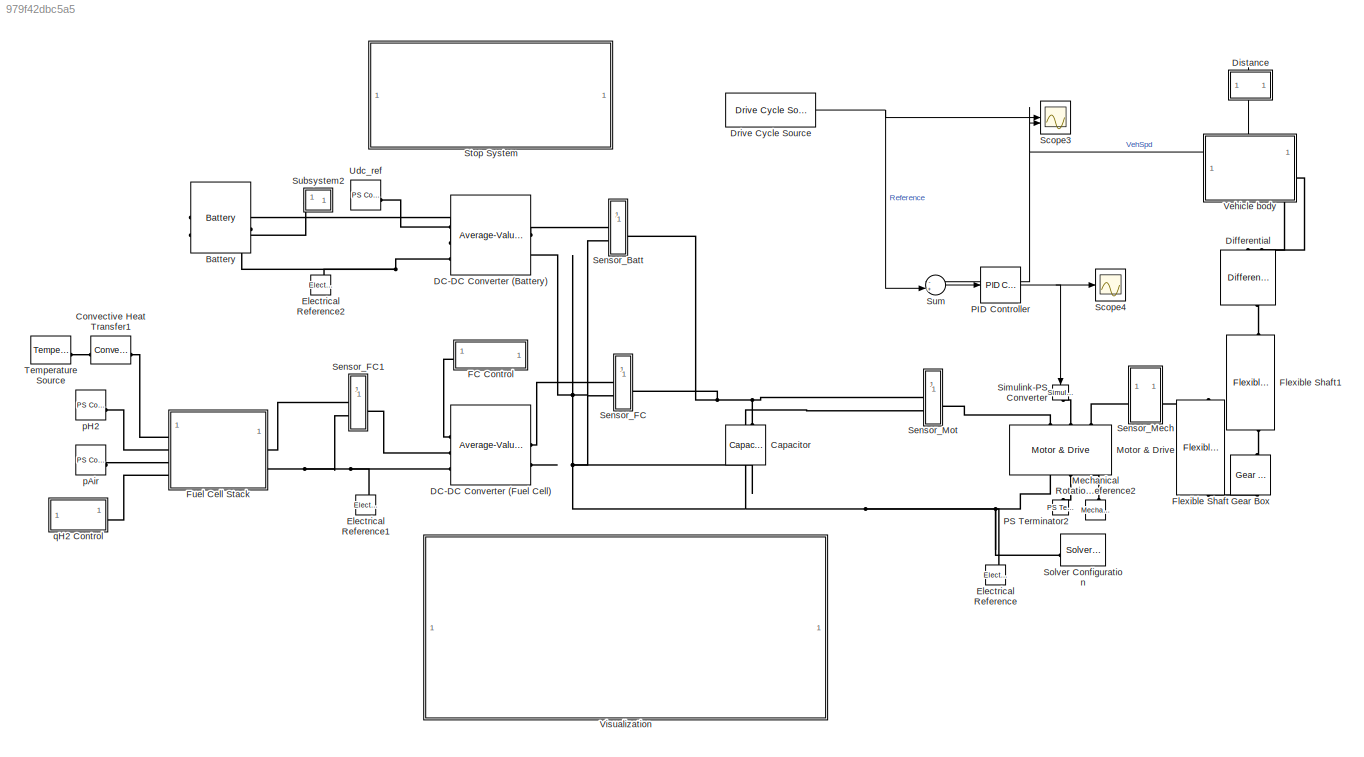
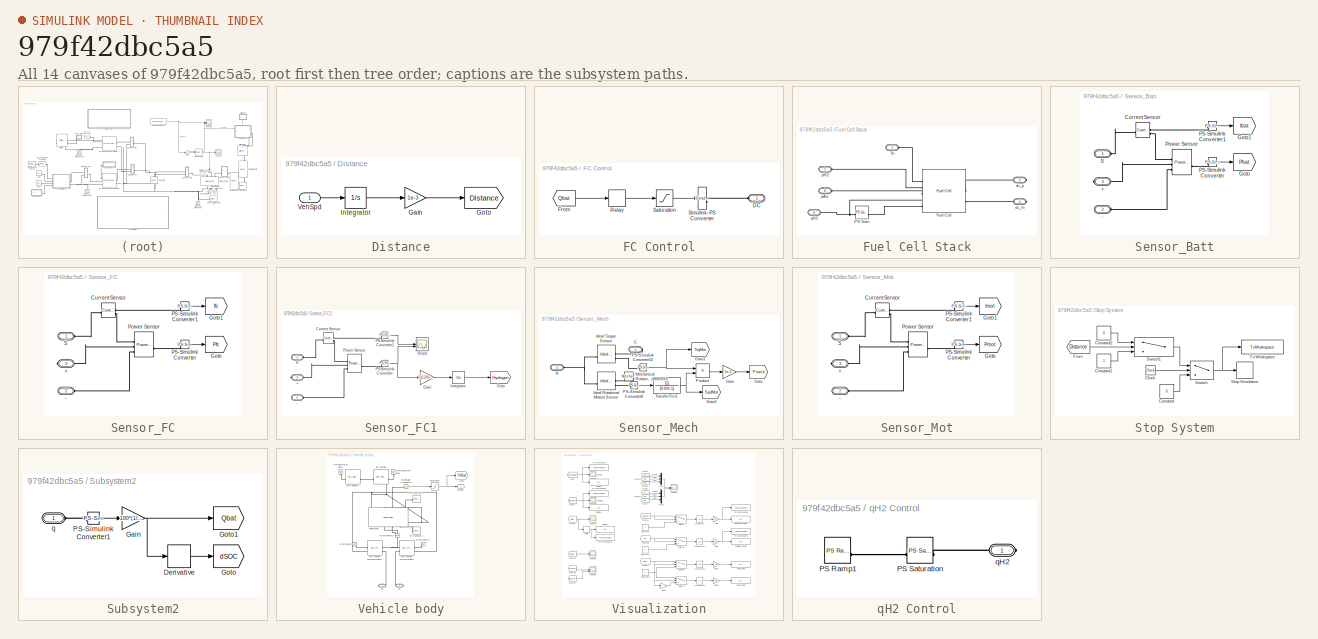
[diagram: thumbnail index - all 14 canvases of the model, root first then tree order]
MODEL slx_979f42dbc5a5
KIND model
CONFIG AbsTol = 1e-9
CONFIG EnableMultiTasking = off
CONFIG FixedStep = auto
CONFIG MaxStep = auto
CONFIG MinStep = 1e-2
CONFIG RelTol = 1e-3
CONFIG SampleTimeConstraint = Unconstrained
CONFIG SolverName = VariableStepAuto
CONFIG StartTime = 0
CONFIG StopTime = 6012
WORKSPACE source: mxarray member
WORKSPACE Cap = 4
WORKSPACE Grade = 0
WORKSPACE QHbatt = 70
WORKSPACE QLbatt = 40
WORKSPACE Trqmax = 400
WORKSPACE Vref = 650
BLOCK [Reference] Battery  REF=batteryecm_lib/Battery
  NameLocation = top
  SourceBlock = batteryecm_lib/Battery
  SourceType = Battery
BLOCK [Reference] Capacitor  REF=fl_lib/Electrical/Electrical Elements/Capacitor
  NameLocation = left
  SourceBlock = fl_lib/Electrical/Electrical Elements/Capacitor
  SourceType = Capacitor
BLOCK [Reference] Convective Heat Transfer1  REF=fl_lib/Thermal/Thermal Elements/Convective Heat
Transfer
  SourceBlock = fl_lib/Thermal/Thermal Elements/Convective Heat\nTransfer
  SourceType = Convective Heat\nTransfer
BLOCK [Reference] DC-DC Converter (Battery)  REF=ee_lib/Semiconductors &
Converters/Converters/Average-Value DC-DC
Converter
  SourceBlock = ee_lib/Semiconductors &\nConverters/Converters/Average-Value DC-DC\nConverter
  SourceType = Average-Value DC-DC\nConverter
BLOCK [Reference] DC-DC Converter (Fuel Cell)  REF=ee_lib/Semiconductors &
Converters/Converters/Average-Value DC-DC
Converter
  SourceBlock = ee_lib/Semiconductors &\nConverters/Converters/Average-Value DC-DC\nConverter
  SourceType = Average-Value DC-DC\nConverter
BLOCK [Reference] Differential  REF=sdl_lib/Gears/Differential
  NameLocation = left
  SourceBlock = sdl_lib/Gears/Differential
  SourceType = Differential
BLOCK [SubSystem] Distance
  ShowPortLabels = none
BLOCK [Gain] Distance/Gain
  Gain = 1e-3
BLOCK [Goto] Distance/Goto
  GotoTag = Distance
  TagVisibility = global
BLOCK [Integrator] Distance/Integrator
BLOCK [Inport] Distance/VehSpd
BLOCK [Reference] Drive Cycle Source  REF=autolibshared/Drive Cycle Source
  AttributesFormatString = %<cycleVar> (%<tfinal>)
  LibrarySourceBlock = autolibscenario/Drive Cycle Source
  SourceBlock = autolibshared/Drive Cycle Source
  SourceType = Drive Cycle Source
BLOCK [Reference] Electrical Reference  REF=fl_lib/Electrical/Electrical Elements/Electrical Reference
  NameLocation = right
  SourceBlock = fl_lib/Electrical/Electrical Elements/Electrical Reference
  SourceType = Electrical Reference
BLOCK [Reference] Electrical Reference1  REF=fl_lib/Electrical/Electrical Elements/Electrical Reference
  LibrarySourceBlock = ee_lib/Connectors &\nReferences/Electrical Reference
  NameLocation = right
  SourceBlock = fl_lib/Electrical/Electrical Elements/Electrical Reference
  SourceType = Electrical Reference
BLOCK [Reference] Electrical Reference2  REF=fl_lib/Electrical/Electrical Elements/Electrical Reference
  NameLocation = right
  SourceBlock = fl_lib/Electrical/Electrical Elements/Electrical Reference
  SourceType = Electrical Reference
BLOCK [SubSystem] FC Control
  ShowPortLabels = none
BLOCK [PMIOPort] FC Control/DC
  Side = Left
BLOCK [From] FC Control/From
  GotoTag = Qbat
  TagVisibility = global
BLOCK [Relay] FC Control/Relay
  OffSwitchValue = QLbatt
  OnSwitchValue = QHbatt
BLOCK [Saturate] FC Control/Saturation
  LowerLimit = 0.05
  UpperLimit = 0.99
BLOCK [Reference] FC Control/Simulink-PS Converter  REF=nesl_utility/Simulink-PS
Converter
  SourceBlock = nesl_utility/Simulink-PS\nConverter
  SourceType = Simulink-PS\nConverter
BLOCK [Reference] Flexible Shaft  REF=sdl_lib/Couplings & Drives/Flexible Shaft
  NameLocation = left
  SourceBlock = sdl_lib/Couplings & Drives/Flexible Shaft
  SourceType = Flexible Shaft
BLOCK [Reference] Flexible Shaft1  REF=sdl_lib/Couplings & Drives/Flexible Shaft
  NameLocation = right
  SourceBlock = sdl_lib/Couplings & Drives/Flexible Shaft
  SourceType = Flexible Shaft
BLOCK [SubSystem] Fuel Cell Stack
BLOCK [Reference] Fuel Cell Stack/Fuel Cell  REF=ee_lib/Sources/Fuel Cell
  SourceBlock = ee_lib/Sources/Fuel Cell
  SourceType = Fuel Cell
BLOCK [Reference] Fuel Cell Stack/PS Gain  REF=fl_lib/Physical Signals/Functions/PS Gain
  SourceBlock = fl_lib/Physical Signals/Functions/PS Gain
  SourceType = PS Gain
BLOCK [PMIOPort] Fuel Cell Stack/Th
  Side = Left
BLOCK [PMIOPort] Fuel Cell Stack/dc_m
  Port = 5
  Side = Right
BLOCK [PMIOPort] Fuel Cell Stack/dc_p
  Port = 2
  Side = Right
BLOCK [PMIOPort] Fuel Cell Stack/pAir
  Port = 4
  Side = Left
BLOCK [PMIOPort] Fuel Cell Stack/pH2
  Port = 3
  Side = Left
BLOCK [PMIOPort] Fuel Cell Stack/qH2
  Port = 6
  Side = Left
BLOCK [Reference] Gear Box  REF=fl_lib/Mechanical/Mechanisms/Gear Box
  NameLocation = right
  SourceBlock = fl_lib/Mechanical/Mechanisms/Gear Box
  SourceType = Gear Box
BLOCK [Reference] Mechanical Rotational Reference2  REF=fl_lib/Mechanical/Rotational Elements/Mechanical
Rotational Reference
  NameLocation = right
  SourceBlock = fl_lib/Mechanical/Rotational Elements/Mechanical\nRotational Reference
  SourceType = Mechanical\nRotational Reference
BLOCK [Reference] Motor & Drive  REF=sdl_lib/Engines & Motors/Motor & Drive
  NameLocation = right
  SourceBlock = sdl_lib/Engines & Motors/Motor & Drive
  SourceType = Motor & Drive
BLOCK [Reference] PID Controller  REF=slpidlib/PID Controller
  LibrarySourceBlock = simulink/Continuous/PID Controller
  SourceBlock = slpidlib/PID Controller
  SourceType = PID 1dof
BLOCK [Reference] PS Terminator2  REF=fl_lib/Physical Signals/Sinks/PS Terminator
  NameLocation = left
  SourceBlock = fl_lib/Physical Signals/Sinks/PS Terminator
  SourceType = PS Terminator
BLOCK [Scope] Scope3
  Floating = off
  NumInputPorts = 2
  ScopeSpecificationString = Simulink.scopes.TimeScopeBlockCfg('CurrentConfiguration', extmgr.ConfigurationSet(extmgr.Configuration('Core','General UI',true,'FigureColor',[1 1 1]),extmgr.Configuration('Core','Source UI',true),extmgr.Configuration('Sources','WiredSimulink',true,'DataLoggingVariableName','ScopeData5'),extmgr.Configuration('Visuals','Time Domain',true,'SerializedDisplays',{struct('MinYLimReal','-5.22222','MaxYLi...<+1712ch>
BLOCK [Scope] Scope4
  Floating = off
  NumInputPorts = 1
  ScopeSpecificationString = Simulink.scopes.TimeScopeBlockCfg('CurrentConfiguration', extmgr.ConfigurationSet(extmgr.Configuration('Core','General UI',true,'FigureColor',[1 1 1]),extmgr.Configuration('Core','Source UI',true),extmgr.Configuration('Sources','WiredSimulink',true,'DataLoggingVariableName','ScopeData2'),extmgr.Configuration('Visuals','Time Domain',true,'SerializedDisplays',{struct('MinYLimReal','-110.23767','MaxY...<+1659ch>
BLOCK [SubSystem] Sensor_Batt
BLOCK [PMIOPort] Sensor_Batt/+
  Port = 3
  Side = Right
BLOCK [PMIOPort] Sensor_Batt/-
  Port = 2
  Side = Left
BLOCK [Reference] Sensor_Batt/Current Sensor  REF=fl_lib/Electrical/Electrical Sensors/Current Sensor
  SourceBlock = fl_lib/Electrical/Electrical Sensors/Current Sensor
  SourceType = Current Sensor
BLOCK [Goto] Sensor_Batt/Goto
  GotoTag = Pbat
  TagVisibility = global
BLOCK [Goto] Sensor_Batt/Goto1
  GotoTag = Ibat
  TagVisibility = global
BLOCK [Reference] Sensor_Batt/PS-Simulink Converter  REF=nesl_utility/PS-Simulink
Converter
  SourceBlock = nesl_utility/PS-Simulink\nConverter
  SourceType = PS-Simulink\nConverter
BLOCK [Reference] Sensor_Batt/PS-Simulink Converter1  REF=nesl_utility/PS-Simulink
Converter
  SourceBlock = nesl_utility/PS-Simulink\nConverter
  SourceType = PS-Simulink\nConverter
BLOCK [Reference] Sensor_Batt/Power Sensor  REF=ee_lib/Sensors &
Transducers/Power Sensor
  SourceBlock = ee_lib/Sensors &\nTransducers/Power Sensor
  SourceType = Power Sensor
BLOCK [PMIOPort] Sensor_Batt/S
  Side = Left
BLOCK [SubSystem] Sensor_FC
BLOCK [PMIOPort] Sensor_FC/+
  Port = 3
  Side = Right
BLOCK [PMIOPort] Sensor_FC/-
  Port = 2
  Side = Left
BLOCK [Reference] Sensor_FC/Current Sensor  REF=fl_lib/Electrical/Electrical Sensors/Current Sensor
  SourceBlock = fl_lib/Electrical/Electrical Sensors/Current Sensor
  SourceType = Current Sensor
BLOCK [Goto] Sensor_FC/Goto
  GotoTag = Pfc
  TagVisibility = global
BLOCK [Goto] Sensor_FC/Goto1
  GotoTag = Ifc
  TagVisibility = global
BLOCK [Reference] Sensor_FC/PS-Simulink Converter  REF=nesl_utility/PS-Simulink
Converter
  SourceBlock = nesl_utility/PS-Simulink\nConverter
  SourceType = PS-Simulink\nConverter
BLOCK [Reference] Sensor_FC/PS-Simulink Converter1  REF=nesl_utility/PS-Simulink
Converter
  SourceBlock = nesl_utility/PS-Simulink\nConverter
  SourceType = PS-Simulink\nConverter
BLOCK [Reference] Sensor_FC/Power Sensor  REF=ee_lib/Sensors &
Transducers/Power Sensor
  SourceBlock = ee_lib/Sensors &\nTransducers/Power Sensor
  SourceType = Power Sensor
BLOCK [PMIOPort] Sensor_FC/S
  Side = Left
BLOCK [SubSystem] Sensor_FC1
BLOCK [PMIOPort] Sensor_FC1/+
  Port = 3
  Side = Right
BLOCK [PMIOPort] Sensor_FC1/-
  Port = 2
  Side = Left
BLOCK [Reference] Sensor_FC1/Current Sensor  REF=fl_lib/Electrical/Electrical Sensors/Current Sensor
  SourceBlock = fl_lib/Electrical/Electrical Sensors/Current Sensor
  SourceType = Current Sensor
BLOCK [Gain] Sensor_FC1/Gain
  Gain = 1/(120e3*0.45)
BLOCK [Goto] Sensor_FC1/Goto
  GotoTag = Hydrogen
  TagVisibility = global
BLOCK [Integrator] Sensor_FC1/Integrator
BLOCK [Reference] Sensor_FC1/PS-Simulink Converter  REF=nesl_utility/PS-Simulink
Converter
  SourceBlock = nesl_utility/PS-Simulink\nConverter
  SourceType = PS-Simulink\nConverter
BLOCK [Reference] Sensor_FC1/PS-Simulink Converter1  REF=nesl_utility/PS-Simulink
Converter
  SourceBlock = nesl_utility/PS-Simulink\nConverter
  SourceType = PS-Simulink\nConverter
BLOCK [Reference] Sensor_FC1/Power Sensor  REF=ee_lib/Sensors &
Transducers/Power Sensor
  SourceBlock = ee_lib/Sensors &\nTransducers/Power Sensor
  SourceType = Power Sensor
BLOCK [PMIOPort] Sensor_FC1/S
  Side = Left
BLOCK [Scope] Sensor_FC1/Scope
  Floating = off
  NumInputPorts = 2
  ScopeSpecificationString = Simulink.scopes.TimeScopeBlockCfg('CurrentConfiguration', extmgr.ConfigurationSet(extmgr.Configuration('Core','General UI',true),extmgr.Configuration('Core','Source UI',true),extmgr.Configuration('Sources','WiredSimulink',true,'DataLoggingVariableName','ScopeData2'),extmgr.Configuration('Visuals','Time Domain',true,'SerializedDisplays',{struct('MinYLimReal','-7.0905','MaxYLimReal','65.05216','YLab...<+1465ch>
BLOCK [SubSystem] Sensor_Mech
BLOCK [PMIOPort] Sensor_Mech/C
  Side = Right
BLOCK [Gain] Sensor_Mech/Gain
  Gain = 1e-3
BLOCK [Goto] Sensor_Mech/Goto
  GotoTag = Pmech
  TagVisibility = global
BLOCK [Goto] Sensor_Mech/Goto1
  GotoTag = TrqMot
  TagVisibility = global
BLOCK [Goto] Sensor_Mech/Goto2
  GotoTag = SpdMot
  TagVisibility = global
BLOCK [Reference] Sensor_Mech/Ideal Rotational Motion Sensor  REF=fl_lib/Mechanical/Mechanical Sensors/Ideal Rotational
Motion Sensor
  SourceBlock = fl_lib/Mechanical/Mechanical Sensors/Ideal Rotational\nMotion Sensor
  SourceType = Ideal Rotational\nMotion Sensor
BLOCK [Reference] Sensor_Mech/Ideal Torque Sensor  REF=fl_lib/Mechanical/Mechanical Sensors/Ideal Torque Sensor
  NameLocation = top
  SourceBlock = fl_lib/Mechanical/Mechanical Sensors/Ideal Torque Sensor
  SourceType = Ideal Torque Sensor
BLOCK [Reference] Sensor_Mech/Mechanical Rotational Reference3  REF=fl_lib/Mechanical/Rotational Elements/Mechanical
Rotational Reference
  NameLocation = top
  SourceBlock = fl_lib/Mechanical/Rotational Elements/Mechanical\nRotational Reference
  SourceType = Mechanical\nRotational Reference
BLOCK [Reference] Sensor_Mech/PS-Simulink Converter10  REF=nesl_utility/PS-Simulink
Converter
  SourceBlock = nesl_utility/PS-Simulink\nConverter
  SourceType = PS-Simulink\nConverter
BLOCK [Reference] Sensor_Mech/PS-Simulink Converter8  REF=nesl_utility/PS-Simulink
Converter
  SourceBlock = nesl_utility/PS-Simulink\nConverter
  SourceType = PS-Simulink\nConverter
BLOCK [Product] Sensor_Mech/Product
BLOCK [PMIOPort] Sensor_Mech/R
  Port = 2
  Side = Left
BLOCK [TransferFcn] Sensor_Mech/Transfer Fcn1
  Denominator = [0.001 1]
BLOCK [SubSystem] Sensor_Mot
BLOCK [PMIOPort] Sensor_Mot/+
  Port = 3
  Side = Right
BLOCK [PMIOPort] Sensor_Mot/-
  Port = 2
  Side = Left
BLOCK [Reference] Sensor_Mot/Current Sensor  REF=fl_lib/Electrical/Electrical Sensors/Current Sensor
  SourceBlock = fl_lib/Electrical/Electrical Sensors/Current Sensor
  SourceType = Current Sensor
BLOCK [Goto] Sensor_Mot/Goto
  GotoTag = Pmot
  TagVisibility = global
BLOCK [Goto] Sensor_Mot/Goto1
  GotoTag = Imot
  TagVisibility = global
BLOCK [Reference] Sensor_Mot/PS-Simulink Converter  REF=nesl_utility/PS-Simulink
Converter
  SourceBlock = nesl_utility/PS-Simulink\nConverter
  SourceType = PS-Simulink\nConverter
BLOCK [Reference] Sensor_Mot/PS-Simulink Converter1  REF=nesl_utility/PS-Simulink
Converter
  SourceBlock = nesl_utility/PS-Simulink\nConverter
  SourceType = PS-Simulink\nConverter
BLOCK [Reference] Sensor_Mot/Power Sensor  REF=ee_lib/Sensors &
Transducers/Power Sensor
  SourceBlock = ee_lib/Sensors &\nTransducers/Power Sensor
  SourceType = Power Sensor
BLOCK [PMIOPort] Sensor_Mot/S
  Side = Left
BLOCK [Reference] Simulink-PS Converter  REF=nesl_utility/Simulink-PS
Converter
  NameLocation = left
  SourceBlock = nesl_utility/Simulink-PS\nConverter
  SourceType = Simulink-PS\nConverter
BLOCK [Reference] Solver Configuration  REF=nesl_utility/Solver
Configuration
  SourceBlock = nesl_utility/Solver\nConfiguration
  SourceType = Solver\nConfiguration
BLOCK [SubSystem] Stop System
BLOCK [Clock] Stop System/Clock
BLOCK [Constant] Stop System/Constant
  Value = 0
BLOCK [Constant] Stop System/Constant1
BLOCK [Constant] Stop System/Constant2
  Value = 0
BLOCK [From] Stop System/From
  GotoTag = Distance
  TagVisibility = global
BLOCK [Stop] Stop System/Stop Simulation
BLOCK [Switch] Stop System/Switch
  Criteria = u2 > Threshold
  InputSameDT = off
  SaturateOnIntegerOverflow = off
  Threshold = 50
BLOCK [Switch] Stop System/Switch1
  Criteria = u2 > Threshold
  InputSameDT = off
  SaturateOnIntegerOverflow = off
  Threshold = 1e-4
BLOCK [ToWorkspace] Stop System/To Workspace
  FixptAsFi = on
  MaxDataPoints = 1
  SampleTime = -1
  Save2DSignal = 2-D array (concatenate along first dimension)
  VariableName = Fstop
BLOCK [SubSystem] Subsystem2
  NameLocation = top
BLOCK [Derivative] Subsystem2/Derivative
BLOCK [Gain] Subsystem2/Gain
  Gain = 100*(1/Qbatt)
BLOCK [Goto] Subsystem2/Goto
  GotoTag = dSOC
  TagVisibility = global
BLOCK [Goto] Subsystem2/Goto1
  GotoTag = Qbat
  TagVisibility = global
BLOCK [Reference] Subsystem2/PS-Simulink Converter1  REF=nesl_utility/PS-Simulink
Converter
  SourceBlock = nesl_utility/PS-Simulink\nConverter
  SourceType = PS-Simulink\nConverter
BLOCK [PMIOPort] Subsystem2/q
  Side = Left
BLOCK [Sum] Sum
  Inputs = -+|
BLOCK [Reference] Temperature Source  REF=fl_lib/Thermal/Thermal Sources/Temperature Source
  SourceBlock = fl_lib/Thermal/Thermal Sources/Temperature Source
  SourceType = Temperature Source
BLOCK [Reference] Udc_ref  REF=fl_lib/Physical Signals/Sources/PS Constant
  SourceBlock = fl_lib/Physical Signals/Sources/PS Constant
  SourceType = PS Constant
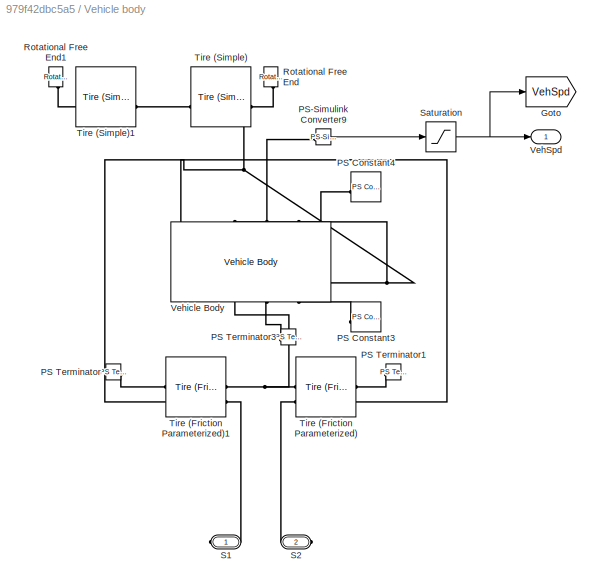
BLOCK [SubSystem] Vehicle body
  NameLocation = top
  PortSchema = {"entries":[{"content":{"sides":[{"content":{"connectorIds":["Out1"]},"type":"ConnectorPlacement.EquallySpacedRectSide","uuid":"30e3ac76-7117-44d4-973a-6378fff16b47"},{"content":{"side":"RIGHT"},"type":"ConnectorPlacement.EquallySpacedRectSide","uuid":"107753d6-a5ca-4ee3-aa53-d48c458c6d9d"},{"content":{"side":"TOP"},"type":"ConnectorPlacement.EquallySpacedRectSide","uuid":"0a3e3c11-8cff-4941-9bcb-...<+360ch>
  ShowPortLabels = none
BLOCK [Goto] Vehicle body/Goto
  GotoTag = VehSpd
  TagVisibility = global
BLOCK [Reference] Vehicle body/PS Constant3  REF=fl_lib/Physical Signals/Sources/PS Constant
  SourceBlock = fl_lib/Physical Signals/Sources/PS Constant
  SourceType = PS Constant
BLOCK [Reference] Vehicle body/PS Constant4  REF=fl_lib/Physical Signals/Sources/PS Constant
  SourceBlock = fl_lib/Physical Signals/Sources/PS Constant
  SourceType = PS Constant
BLOCK [Reference] Vehicle body/PS Terminator  REF=fl_lib/Physical Signals/Sinks/PS Terminator
  SourceBlock = fl_lib/Physical Signals/Sinks/PS Terminator
  SourceType = PS Terminator
BLOCK [Reference] Vehicle body/PS Terminator1  REF=fl_lib/Physical Signals/Sinks/PS Terminator
  SourceBlock = fl_lib/Physical Signals/Sinks/PS Terminator
  SourceType = PS Terminator
BLOCK [Reference] Vehicle body/PS Terminator3  REF=fl_lib/Physical Signals/Sinks/PS Terminator
  SourceBlock = fl_lib/Physical Signals/Sinks/PS Terminator
  SourceType = PS Terminator
BLOCK [Reference] Vehicle body/PS-Simulink Converter9  REF=nesl_utility/PS-Simulink
Converter
  SourceBlock = nesl_utility/PS-Simulink\nConverter
  SourceType = PS-Simulink\nConverter
BLOCK [Reference] Vehicle body/Rotational Free End  REF=fl_lib/Mechanical/Rotational Elements/Rotational Free End
  NameLocation = left
  SourceBlock = fl_lib/Mechanical/Rotational Elements/Rotational Free End
  SourceType = Rotational Free End
BLOCK [Reference] Vehicle body/Rotational Free End1  REF=fl_lib/Mechanical/Rotational Elements/Rotational Free End
  NameLocation = left
  SourceBlock = fl_lib/Mechanical/Rotational Elements/Rotational Free End
  SourceType = Rotational Free End
BLOCK [PMIOPort] Vehicle body/S1
  Side = Right
BLOCK [PMIOPort] Vehicle body/S2
  Port = 2
  Side = Right
BLOCK [Saturate] Vehicle body/Saturation
  LowerLimit = 0
  UpperLimit = inf
  ZeroCross = off
BLOCK [Reference] Vehicle body/Tire (Friction Parameterized)  REF=sdl_lib/Tires & Vehicles/Tire (Friction
Parameterized)
  SourceBlock = sdl_lib/Tires & Vehicles/Tire (Friction\nParameterized)
  SourceType = Tire (Friction\nParameterized)
BLOCK [Reference] Vehicle body/Tire (Friction Parameterized)1  REF=sdl_lib/Tires & Vehicles/Tire (Friction
Parameterized)
  SourceBlock = sdl_lib/Tires & Vehicles/Tire (Friction\nParameterized)
  SourceType = Tire (Friction\nParameterized)
BLOCK [Reference] Vehicle body/Tire (Simple)  REF=sdl_lib/Tires & Vehicles/Tire (Simple)
  NameLocation = top
  SourceBlock = sdl_lib/Tires & Vehicles/Tire (Simple)
  SourceType = Tire (Simple)
BLOCK [Reference] Vehicle body/Tire (Simple)1  REF=sdl_lib/Tires & Vehicles/Tire (Simple)
  NameLocation = top
  SourceBlock = sdl_lib/Tires & Vehicles/Tire (Simple)
  SourceType = Tire (Simple)
BLOCK [Outport] Vehicle body/VehSpd
BLOCK [Reference] Vehicle body/Vehicle Body  REF=sdl_lib/Tires & Vehicles/Vehicle Body
  NameLocation = right
  SourceBlock = sdl_lib/Tires & Vehicles/Vehicle Body
  SourceType = Vehicle Body
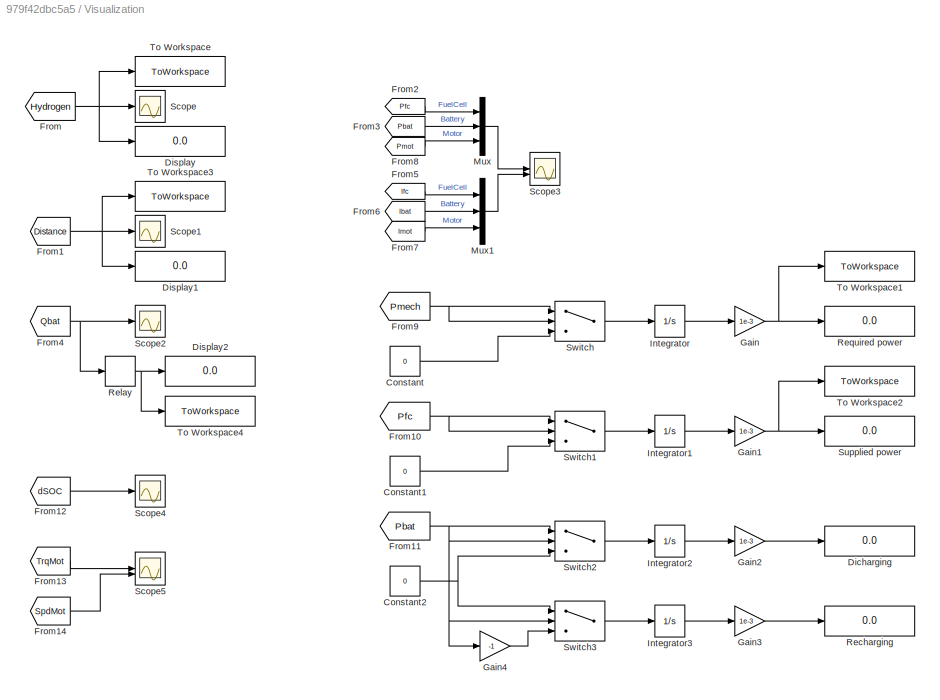
BLOCK [SubSystem] Visualization
BLOCK [Constant] Visualization/Constant
  Value = 0
BLOCK [Constant] Visualization/Constant1
  Value = 0
BLOCK [Constant] Visualization/Constant2
  Value = 0
BLOCK [Display] Visualization/Dicharging
  Decimation = 1
BLOCK [Display] Visualization/Display
  Decimation = 1
BLOCK [Display] Visualization/Display1
  Decimation = 1
BLOCK [Display] Visualization/Display2
  Decimation = 1
BLOCK [From] Visualization/From
  GotoTag = Hydrogen
  TagVisibility = global
BLOCK [From] Visualization/From1
  GotoTag = Distance
  TagVisibility = global
BLOCK [From] Visualization/From10
  GotoTag = Pfc
  TagVisibility = global
BLOCK [From] Visualization/From11
  GotoTag = Pbat
  TagVisibility = global
BLOCK [From] Visualization/From12
  GotoTag = dSOC
  TagVisibility = global
BLOCK [From] Visualization/From13
  GotoTag = TrqMot
  TagVisibility = global
BLOCK [From] Visualization/From14
  GotoTag = SpdMot
  TagVisibility = global
BLOCK [From] Visualization/From2
  GotoTag = Pfc
  TagVisibility = global
BLOCK [From] Visualization/From3
  GotoTag = Pbat
  TagVisibility = global
BLOCK [From] Visualization/From4
  GotoTag = Qbat
  TagVisibility = global
BLOCK [From] Visualization/From5
  GotoTag = Ifc
  TagVisibility = global
BLOCK [From] Visualization/From6
  GotoTag = Ibat
  TagVisibility = global
BLOCK [From] Visualization/From7
  GotoTag = Imot
  TagVisibility = global
BLOCK [From] Visualization/From8
  GotoTag = Pmot
  TagVisibility = global
BLOCK [From] Visualization/From9
  GotoTag = Pmech
  TagVisibility = global
BLOCK [Gain] Visualization/Gain
  Gain = 1e-3
BLOCK [Gain] Visualization/Gain1
  Gain = 1e-3
BLOCK [Gain] Visualization/Gain2
  Gain = 1e-3
BLOCK [Gain] Visualization/Gain3
  Gain = 1e-3
BLOCK [Gain] Visualization/Gain4
  Gain = -1
BLOCK [Integrator] Visualization/Integrator
BLOCK [Integrator] Visualization/Integrator1
BLOCK [Integrator] Visualization/Integrator2
BLOCK [Integrator] Visualization/Integrator3
BLOCK [Mux] Visualization/Mux
  DisplayOption = bar
  Inputs = 3
BLOCK [Mux] Visualization/Mux1
  DisplayOption = bar
  Inputs = 3
BLOCK [Display] Visualization/Recharging
  Decimation = 1
BLOCK [Relay] Visualization/Relay
  OffSwitchValue = 0
  OnSwitchValue = 100
BLOCK [Display] Visualization/Required power
  Decimation = 1
BLOCK [Scope] Visualization/Scope
  Floating = off
  NumInputPorts = 1
  ScopeSpecificationString = Simulink.scopes.TimeScopeBlockCfg('CurrentConfiguration', extmgr.ConfigurationSet(extmgr.Configuration('Core','General UI',true,'FigureColor',[1 1 1]),extmgr.Configuration('Core','Source UI',true),extmgr.Configuration('Sources','WiredSimulink',true,'DataLoggingVariableName','ScopeData1'),extmgr.Configuration('Visuals','Time Domain',true,'SerializedDisplays',{struct('MinYLimReal','-1.00000','MaxYLi...<+1589ch>
BLOCK [Scope] Visualization/Scope1
  Floating = off
  NumInputPorts = 1
  ScopeSpecificationString = Simulink.scopes.TimeScopeBlockCfg('CurrentConfiguration', extmgr.ConfigurationSet(extmgr.Configuration('Core','General UI',true),extmgr.Configuration('Core','Source UI',true),extmgr.Configuration('Sources','WiredSimulink',true,'DataLoggingVariableName','ScopeData2'),extmgr.Configuration('Visuals','Time Domain',true),extmgr.Configuration('Tools','Plot Navigation',true),extmgr.Configuration('Tools',...<+40ch>
BLOCK [Scope] Visualization/Scope2
  Floating = off
  NumInputPorts = 1
  ScopeSpecificationString = Simulink.scopes.TimeScopeBlockCfg('CurrentConfiguration', extmgr.ConfigurationSet(extmgr.Configuration('Core','General UI',true,'FigureColor',[1 1 1]),extmgr.Configuration('Core','Source UI',true),extmgr.Configuration('Sources','WiredSimulink',true,'DataLoggingVariableName','ScopeData3'),extmgr.Configuration('Visuals','Time Domain',true,'SerializedDisplays',{struct('MinYLimReal','0.00000','MaxYLim...<+2356ch>
BLOCK [Scope] Visualization/Scope3
  Floating = off
  NumInputPorts = 2
  ScopeSpecificationString = Simulink.scopes.TimeScopeBlockCfg('CurrentConfiguration', extmgr.ConfigurationSet(extmgr.Configuration('Core','General UI',true,'FigureColor',[1 1 1]),extmgr.Configuration('Core','Source UI',true),extmgr.Configuration('Sources','WiredSimulink',true,'DataLoggingVariableName','ScopeData4'),extmgr.Configuration('Visuals','Time Domain',true,'TimeAxisLabels','All','SerializedDisplays',{struct('MinYLimR...<+2904ch>
BLOCK [Scope] Visualization/Scope4
  Floating = off
  NumInputPorts = 1
  ScopeSpecificationString = Simulink.scopes.TimeScopeBlockCfg('CurrentConfiguration', extmgr.ConfigurationSet(extmgr.Configuration('Core','General UI',true,'FigureColor',[1 1 1]),extmgr.Configuration('Core','Source UI',true),extmgr.Configuration('Sources','WiredSimulink',true,'DataLoggingVariableName','ScopeData2'),extmgr.Configuration('Visuals','Time Domain',true,'SerializedDisplays',{struct('MinYLimReal','-1.00000','MaxYLi...<+1590ch>
BLOCK [Scope] Visualization/Scope5
  Floating = off
  NumInputPorts = 2
  ScopeSpecificationString = Simulink.scopes.TimeScopeBlockCfg('CurrentConfiguration', extmgr.ConfigurationSet(extmgr.Configuration('Core','General UI',true),extmgr.Configuration('Core','Source UI',true),extmgr.Configuration('Sources','WiredSimulink',true,'DataLoggingVariableName','ScopeData1'),extmgr.Configuration('Visuals','Time Domain',true,'SerializedDisplays',{struct('MinYLimReal','-107.73213','MaxYLimReal','456.41468','...<+2109ch>
BLOCK [Display] Visualization/Supplied power
  Decimation = 1
BLOCK [Switch] Visualization/Switch
  InputSameDT = off
  SaturateOnIntegerOverflow = off
BLOCK [Switch] Visualization/Switch1
  InputSameDT = off
  SaturateOnIntegerOverflow = off
BLOCK [Switch] Visualization/Switch2
  InputSameDT = off
  SaturateOnIntegerOverflow = off
BLOCK [Switch] Visualization/Switch3
  InputSameDT = off
  SaturateOnIntegerOverflow = off
BLOCK [ToWorkspace] Visualization/To Workspace
  Decimation = 6
  FixptAsFi = on
  MaxDataPoints = 1
  SampleTime = -1
  Save2DSignal = 2-D array (concatenate along first dimension)
  VariableName = H
BLOCK [ToWorkspace] Visualization/To Workspace1
  Decimation = 6
  FixptAsFi = on
  MaxDataPoints = 1
  SampleTime = -1
  Save2DSignal = 2-D array (concatenate along first dimension)
  VariableName = Pmech
BLOCK [ToWorkspace] Visualization/To Workspace2
  Decimation = 6
  FixptAsFi = on
  MaxDataPoints = 1
  SampleTime = -1
  Save2DSignal = 2-D array (concatenate along first dimension)
  VariableName = Pfc
BLOCK [ToWorkspace] Visualization/To Workspace3
  Decimation = 6
  FixptAsFi = on
  MaxDataPoints = 1
  SampleTime = -1
  Save2DSignal = 2-D array (concatenate along first dimension)
  VariableName = Distance
BLOCK [ToWorkspace] Visualization/To Workspace4
  Decimation = 6
  FixptAsFi = on
  MaxDataPoints = 1
  SampleTime = -1
  Save2DSignal = 2-D array (concatenate along first dimension)
  VariableName = Fsoc
BLOCK [Reference] pAir  REF=fl_lib/Physical Signals/Sources/PS Constant
  SourceBlock = fl_lib/Physical Signals/Sources/PS Constant
  SourceType = PS Constant
BLOCK [Reference] pH2  REF=fl_lib/Physical Signals/Sources/PS Constant
  SourceBlock = fl_lib/Physical Signals/Sources/PS Constant
  SourceType = PS Constant
BLOCK [SubSystem] qH2 Control
BLOCK [Reference] qH2 Control/PS Ramp1  REF=fl_lib/Physical Signals/Sources/PS Ramp
  SourceBlock = fl_lib/Physical Signals/Sources/PS Ramp
  SourceType = PS Ramp
BLOCK [Reference] qH2 Control/PS Saturation  REF=fl_lib/Physical Signals/Nonlinear Operators/PS Saturation
  SourceBlock = fl_lib/Physical Signals/Nonlinear Operators/PS Saturation
  SourceType = PS Saturation
BLOCK [PMIOPort] qH2 Control/qH2
  Side = Right
LINE Distance/Gain:1 -> Distance/Goto:1
LINE Distance/Integrator:1 -> Distance/Gain:1
LINE Distance/VehSpd:1 -> Distance/Integrator:1
NET Drive Cycle Source:1 -> Scope3:1, Sum:2
LINE FC Control/From:1 -> FC Control/Relay:1
LINE FC Control/Relay:1 -> FC Control/Saturation:1
LINE FC Control/Saturation:1 -> FC Control/Simulink-PS Converter:1
NET PID Controller:1 -> Scope4:1, Simulink-PS Converter:1
LINE Sensor_Batt/PS-Simulink Converter1:1 -> Sensor_Batt/Goto1:1
LINE Sensor_Batt/PS-Simulink Converter:1 -> Sensor_Batt/Goto:1
LINE Sensor_FC/PS-Simulink Converter1:1 -> Sensor_FC/Goto1:1
LINE Sensor_FC/PS-Simulink Converter:1 -> Sensor_FC/Goto:1
LINE Sensor_FC1/Gain:1 -> Sensor_FC1/Integrator:1
LINE Sensor_FC1/Integrator:1 -> Sensor_FC1/Goto:1
LINE Sensor_FC1/PS-Simulink Converter1:1 -> Sensor_FC1/Scope:1
NET Sensor_FC1/PS-Simulink Converter:1 -> Sensor_FC1/Gain:1, Sensor_FC1/Scope:2
LINE Sensor_Mech/Gain:1 -> Sensor_Mech/Goto:1
NET Sensor_Mech/PS-Simulink Converter10:1 -> Sensor_Mech/Goto1:1, Sensor_Mech/Product:1
LINE Sensor_Mech/PS-Simulink Converter8:1 -> Sensor_Mech/Transfer Fcn1:1
LINE Sensor_Mech/Product:1 -> Sensor_Mech/Gain:1
NET Sensor_Mech/Transfer Fcn1:1 -> Sensor_Mech/Goto2:1, Sensor_Mech/Product:2
LINE Sensor_Mot/PS-Simulink Converter1:1 -> Sensor_Mot/Goto1:1
LINE Sensor_Mot/PS-Simulink Converter:1 -> Sensor_Mot/Goto:1
LINE Stop System/Clock:1 -> Stop System/Switch:2
LINE Stop System/Constant1:1 -> Stop System/Switch1:3
LINE Stop System/Constant2:1 -> Stop System/Switch1:1
LINE Stop System/Constant:1 -> Stop System/Switch:3
LINE Stop System/From:1 -> Stop System/Switch1:2
LINE Stop System/Switch1:1 -> Stop System/Switch:1
NET Stop System/Switch:1 -> Stop System/Stop Simulation:1, Stop System/To Workspace:1
LINE Subsystem2/Derivative:1 -> Subsystem2/Goto:1
NET Subsystem2/Gain:1 -> Subsystem2/Derivative:1, Subsystem2/Goto1:1
LINE Subsystem2/PS-Simulink Converter1:1 -> Subsystem2/Gain:1
LINE Sum:1 -> PID Controller:1
LINE Vehicle body/PS-Simulink Converter9:1 -> Vehicle body/Saturation:1
NET Vehicle body/Saturation:1 -> Vehicle body/Goto:1, Vehicle body/VehSpd:1
NET Vehicle body:1 -> Distance:1, Scope3:2, Sum:1
LINE Visualization/Constant1:1 -> Visualization/Switch1:3
NET Visualization/Constant2:1 -> Visualization/Switch2:3, Visualization/Switch3:1
LINE Visualization/Constant:1 -> Visualization/Switch:3
NET Visualization/From10:1 -> Visualization/Switch1:1, Visualization/Switch1:2
NET Visualization/From11:1 -> Visualization/Gain4:1, Visualization/Switch2:1, Visualization/Switch2:2, Visualization/Switch3:2
LINE Visualization/From12:1 -> Visualization/Scope4:1
LINE Visualization/From13:1 -> Visualization/Scope5:1
LINE Visualization/From14:1 -> Visualization/Scope5:2
NET Visualization/From1:1 -> Visualization/Display1:1, Visualization/Scope1:1, Visualization/To Workspace3:1
LINE Visualization/From2:1 -> Visualization/Mux:1
LINE Visualization/From3:1 -> Visualization/Mux:2
NET Visualization/From4:1 -> Visualization/Relay:1, Visualization/Scope2:1
LINE Visualization/From5:1 -> Visualization/Mux1:1
LINE Visualization/From6:1 -> Visualization/Mux1:2
LINE Visualization/From7:1 -> Visualization/Mux1:3
LINE Visualization/From8:1 -> Visualization/Mux:3
NET Visualization/From9:1 -> Visualization/Switch:1, Visualization/Switch:2
NET Visualization/From:1 -> Visualization/Display:1, Visualization/Scope:1, Visualization/To Workspace:1
NET Visualization/Gain1:1 -> Visualization/Supplied power:1, Visualization/To Workspace2:1
LINE Visualization/Gain2:1 -> Visualization/Dicharging:1
LINE Visualization/Gain3:1 -> Visualization/Recharging:1
LINE Visualization/Gain4:1 -> Visualization/Switch3:3
NET Visualization/Gain:1 -> Visualization/Required power:1, Visualization/To Workspace1:1
LINE Visualization/Integrator1:1 -> Visualization/Gain1:1
LINE Visualization/Integrator2:1 -> Visualization/Gain2:1
LINE Visualization/Integrator3:1 -> Visualization/Gain3:1
LINE Visualization/Integrator:1 -> Visualization/Gain:1
LINE Visualization/Mux1:1 -> Visualization/Scope3:2
LINE Visualization/Mux:1 -> Visualization/Scope3:1
NET Visualization/Relay:1 -> Visualization/Display2:1, Visualization/To Workspace4:1
LINE Visualization/Switch1:1 -> Visualization/Integrator1:1
LINE Visualization/Switch2:1 -> Visualization/Integrator2:1
LINE Visualization/Switch3:1 -> Visualization/Integrator3:1
LINE Visualization/Switch:1 -> Visualization/Integrator:1
PLINE Battery:LConn1 -- DC-DC Converter (Battery):LConn2
PLINE Battery:LConn2 -- Subsystem2:LConn1
PNET net1: Battery:RConn1 -- DC-DC Converter (Battery):LConn3 -- Electrical Reference2:LConn1
PNET net2: Capacitor:LConn1 -- Sensor_Batt:RConn1 -- Sensor_FC:RConn1 -- Sensor_Mot:LConn1
PNET net3: Capacitor:RConn1 -- DC-DC Converter (Battery):RConn2 -- DC-DC Converter (Fuel Cell):RConn2 -- Electrical Reference:LConn1 -- Motor & Drive:RConn1 -- Sensor_Batt:LConn2 -- Sensor_FC:LConn2 -- Sensor_Mot:LConn2 -- Solver Configuration:RConn1
PLINE Convective Heat Transfer1:LConn1 -- Fuel Cell Stack:LConn1
PLINE Convective Heat Transfer1:RConn1 -- Temperature Source:LConn1
PLINE DC-DC Converter (Battery):LConn1 -- Udc_ref:RConn1
PLINE DC-DC Converter (Battery):RConn1 -- Sensor_Batt:LConn1
PLINE DC-DC Converter (Fuel Cell):LConn1 -- FC Control:LConn1
PLINE DC-DC Converter (Fuel Cell):LConn2 -- Sensor_FC1:RConn1
PNET net4: DC-DC Converter (Fuel Cell):LConn3 -- Electrical Reference1:LConn1 -- Fuel Cell Stack:RConn2 -- Sensor_FC1:LConn2
PLINE DC-DC Converter (Fuel Cell):RConn1 -- Sensor_FC:LConn1
PLINE Differential:LConn1 -- Flexible Shaft1:RConn1
PLINE Differential:RConn1 -- Vehicle body:RConn1
PLINE Differential:RConn2 -- Vehicle body:RConn2
PLINE FC Control/DC:RConn1 -- FC Control/Simulink-PS Converter:RConn1
PLINE Flexible Shaft1:LConn1 -- Gear Box:RConn1
PLINE Flexible Shaft:LConn1 -- Sensor_Mech:RConn1
PLINE Flexible Shaft:RConn1 -- Gear Box:LConn1
PLINE Fuel Cell Stack/Fuel Cell:LConn1 -- Fuel Cell Stack/Th:RConn1
PLINE Fuel Cell Stack/Fuel Cell:LConn2 -- Fuel Cell Stack/pH2:RConn1
PLINE Fuel Cell Stack/Fuel Cell:LConn3 -- Fuel Cell Stack/pAir:RConn1
PNET net5: Fuel Cell Stack/Fuel Cell:LConn4 -- Fuel Cell Stack/PS Gain:LConn1 -- Fuel Cell Stack/qH2:RConn1
PLINE Fuel Cell Stack/Fuel Cell:LConn5 -- Fuel Cell Stack/PS Gain:RConn1
PLINE Fuel Cell Stack/Fuel Cell:RConn1 -- Fuel Cell Stack/dc_p:RConn1
PLINE Fuel Cell Stack/Fuel Cell:RConn2 -- Fuel Cell Stack/dc_m:RConn1
PLINE Fuel Cell Stack:LConn2 -- pH2:RConn1
PLINE Fuel Cell Stack:LConn3 -- pAir:RConn1
PLINE Fuel Cell Stack:LConn4 -- qH2 Control:RConn1
PLINE Fuel Cell Stack:RConn1 -- Sensor_FC1:LConn1
PLINE Mechanical Rotational Reference2:LConn1 -- Motor & Drive:RConn3
PLINE Motor & Drive:LConn1 -- Sensor_Mot:RConn1
PLINE Motor & Drive:LConn2 -- Simulink-PS Converter:RConn1
PLINE Motor & Drive:LConn3 -- Sensor_Mech:LConn1
PLINE Motor & Drive:RConn2 -- PS Terminator2:LConn1
PLINE Sensor_Batt/+:RConn1 -- Sensor_Batt/Power Sensor:LConn2
PLINE Sensor_Batt/-:RConn1 -- Sensor_Batt/Power Sensor:LConn3
PLINE Sensor_Batt/Current Sensor:LConn1 -- Sensor_Batt/S:RConn1
PLINE Sensor_Batt/Current Sensor:RConn1 -- Sensor_Batt/PS-Simulink Converter1:LConn1
PLINE Sensor_Batt/Current Sensor:RConn2 -- Sensor_Batt/Power Sensor:LConn1
PLINE Sensor_Batt/PS-Simulink Converter:LConn1 -- Sensor_Batt/Power Sensor:RConn1
PLINE Sensor_FC/+:RConn1 -- Sensor_FC/Power Sensor:LConn2
PLINE Sensor_FC/-:RConn1 -- Sensor_FC/Power Sensor:LConn3
PLINE Sensor_FC/Current Sensor:LConn1 -- Sensor_FC/S:RConn1
PLINE Sensor_FC/Current Sensor:RConn1 -- Sensor_FC/PS-Simulink Converter1:LConn1
PLINE Sensor_FC/Current Sensor:RConn2 -- Sensor_FC/Power Sensor:LConn1
PLINE Sensor_FC/PS-Simulink Converter:LConn1 -- Sensor_FC/Power Sensor:RConn1
PLINE Sensor_FC1/+:RConn1 -- Sensor_FC1/Power Sensor:LConn2
PLINE Sensor_FC1/-:RConn1 -- Sensor_FC1/Power Sensor:LConn3
PLINE Sensor_FC1/Current Sensor:LConn1 -- Sensor_FC1/S:RConn1
PLINE Sensor_FC1/Current Sensor:RConn1 -- Sensor_FC1/PS-Simulink Converter1:LConn1
PLINE Sensor_FC1/Current Sensor:RConn2 -- Sensor_FC1/Power Sensor:LConn1
PLINE Sensor_FC1/PS-Simulink Converter:LConn1 -- Sensor_FC1/Power Sensor:RConn1
PLINE Sensor_Mech/C:RConn1 -- Sensor_Mech/Ideal Torque Sensor:RConn1
PNET net6: Sensor_Mech/Ideal Rotational Motion Sensor:LConn1 -- Sensor_Mech/Ideal Torque Sensor:LConn1 -- Sensor_Mech/R:RConn1
PLINE Sensor_Mech/Ideal Rotational Motion Sensor:RConn1 -- Sensor_Mech/Mechanical Rotational Reference3:LConn1
PLINE Sensor_Mech/Ideal Rotational Motion Sensor:RConn2 -- Sensor_Mech/PS-Simulink Converter8:LConn1
PLINE Sensor_Mech/Ideal Torque Sensor:RConn2 -- Sensor_Mech/PS-Simulink Converter10:LConn1
PLINE Sensor_Mot/+:RConn1 -- Sensor_Mot/Power Sensor:LConn2
PLINE Sensor_Mot/-:RConn1 -- Sensor_Mot/Power Sensor:LConn3
PLINE Sensor_Mot/Current Sensor:LConn1 -- Sensor_Mot/S:RConn1
PLINE Sensor_Mot/Current Sensor:RConn1 -- Sensor_Mot/PS-Simulink Converter1:LConn1
PLINE Sensor_Mot/Current Sensor:RConn2 -- Sensor_Mot/Power Sensor:LConn1
PLINE Sensor_Mot/PS-Simulink Converter:LConn1 -- Sensor_Mot/Power Sensor:RConn1
PLINE Subsystem2/PS-Simulink Converter1:LConn1 -- Subsystem2/q:RConn1
PLINE Vehicle body/PS Constant3:RConn1 -- Vehicle body/Vehicle Body:RConn3
PLINE Vehicle body/PS Constant4:RConn1 -- Vehicle body/Vehicle Body:LConn3
PLINE Vehicle body/PS Terminator1:LConn1 -- Vehicle body/Tire (Friction Parameterized):RConn1
PLINE Vehicle body/PS Terminator3:LConn1 -- Vehicle body/Vehicle Body:RConn2
PLINE Vehicle body/PS Terminator:LConn1 -- Vehicle body/Tire (Friction Parameterized)1:RConn1
PLINE Vehicle body/PS-Simulink Converter9:LConn1 -- Vehicle body/Vehicle Body:LConn2
PLINE Vehicle body/Rotational Free End1:LConn1 -- Vehicle body/Tire (Simple)1:LConn1
PLINE Vehicle body/Rotational Free End:LConn1 -- Vehicle body/Tire (Simple):LConn1
PLINE Vehicle body/S1:RConn1 -- Vehicle body/Tire (Friction Parameterized)1:LConn2
PLINE Vehicle body/S2:RConn1 -- Vehicle body/Tire (Friction Parameterized):LConn2
PNET net7: Vehicle body/Tire (Friction Parameterized)1:LConn1 -- Vehicle body/Tire (Friction Parameterized):LConn1 -- Vehicle body/Vehicle Body:RConn1
PNET net8: Vehicle body/Tire (Friction Parameterized)1:RConn2 -- Vehicle body/Tire (Friction Parameterized):RConn2 -- Vehicle body/Tire (Simple)1:RConn1 -- Vehicle body/Tire (Simple):RConn1 -- Vehicle body/Vehicle Body:LConn1
PLINE qH2 Control/PS Ramp1:RConn1 -- qH2 Control/PS Saturation:LConn1
PLINE qH2 Control/PS Saturation:RConn1 -- qH2 Control/qH2:RConn1
note: NET lines group one-source signal fan-out (src -> all destinations, sorted); 1:1 wires keep LINE; PNET lines group multi-terminal physical nets as a canonical sorted terminal list (undirected conserving connections); 2-terminal nets keep the pairwise PLINE form
